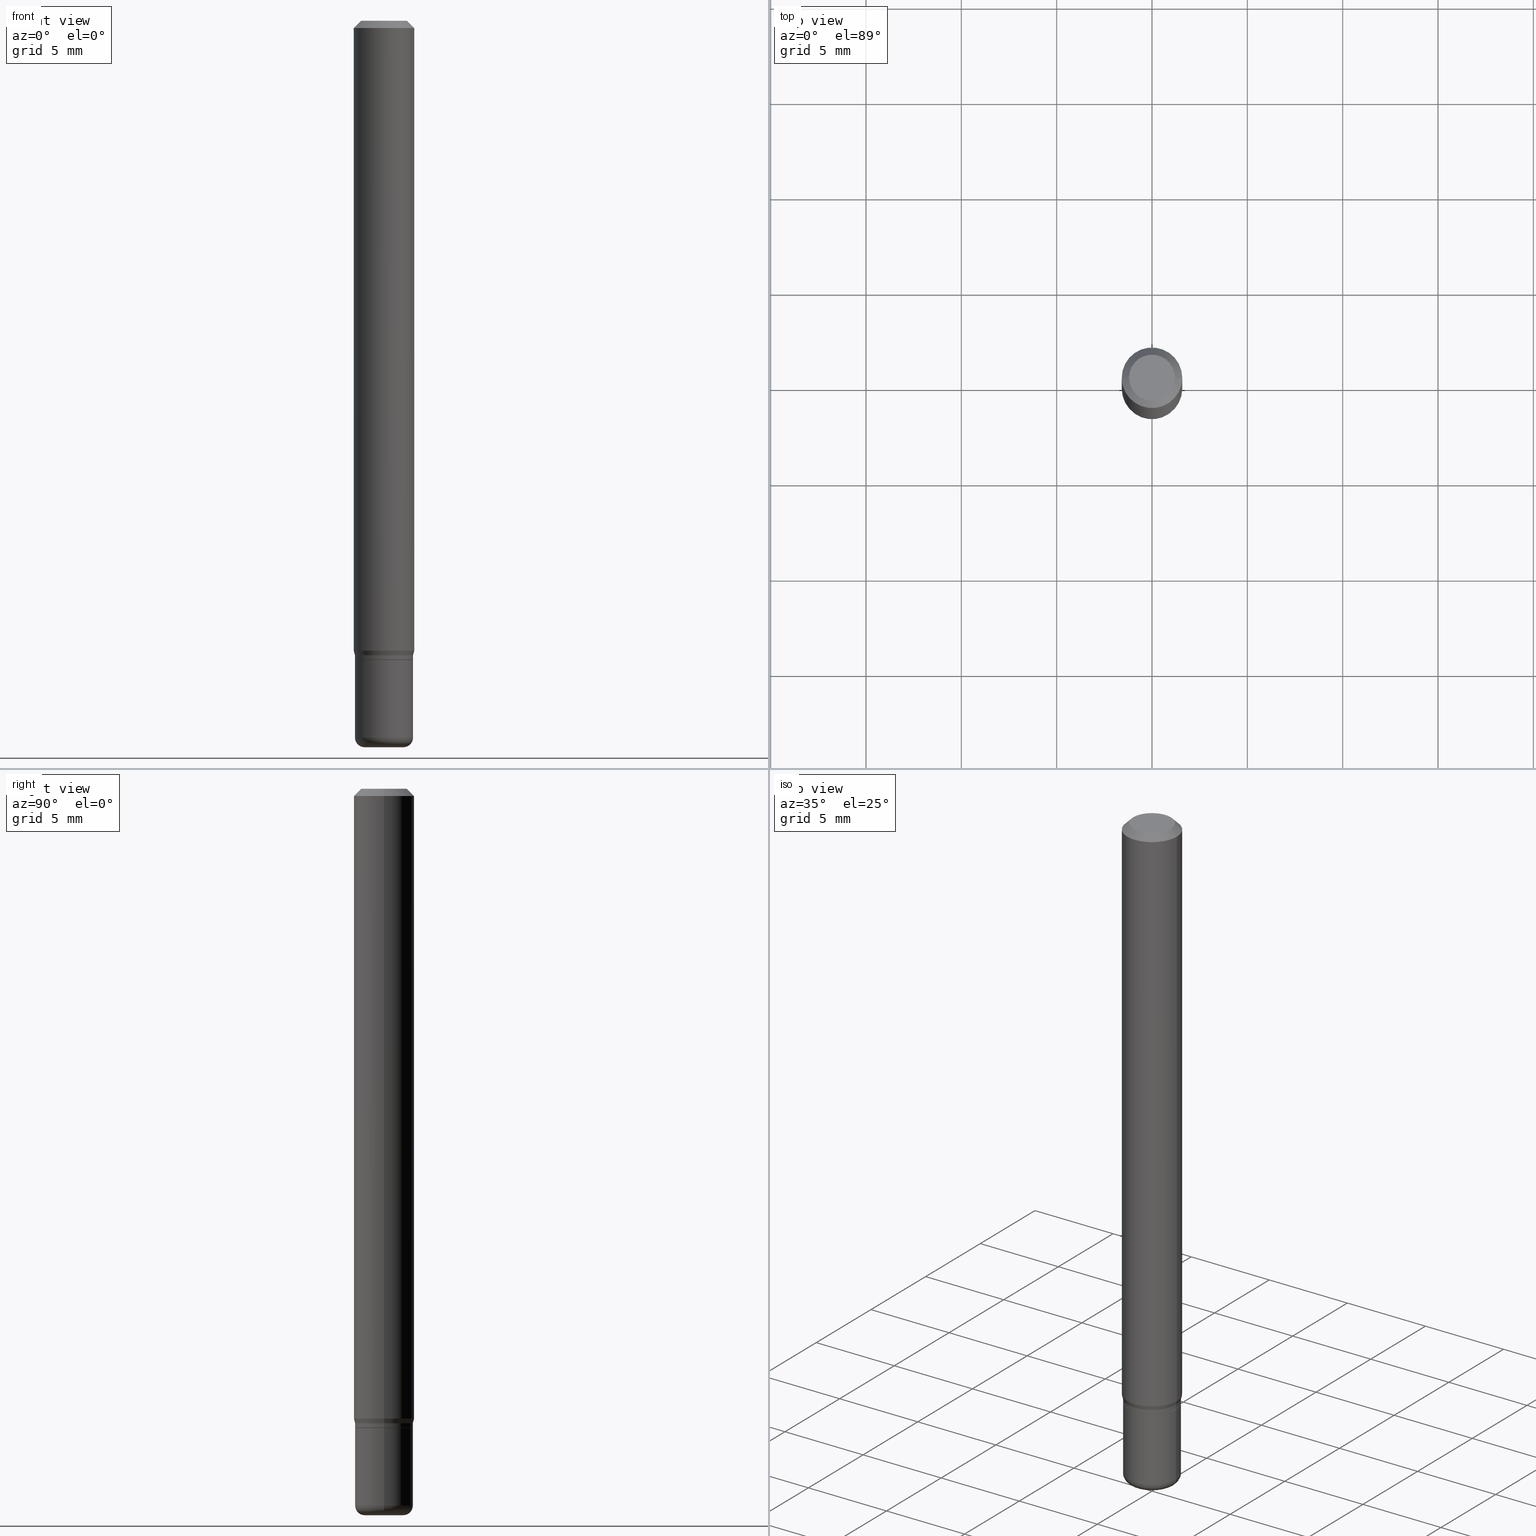
[diagram: canonical four-view strip — front | top / right | iso, engineering-drawing reading convention]
A machine part, canonical four-view strip (front | top / right | iso — engineering-drawing reading convention). The complete STEP part file that produces these views, byte-faithful:
ISO-10303-21;
HEADER;
FILE_DESCRIPTION (( 'STEP AP203' ),
    '1' );
FILE_NAME ('08778.STEP',
    '2024-02-29T21:01:12',
    ( '' ),
    ( '' ),
    'SwSTEP 2.0',
    'SolidWorks 2023',
    '' );
FILE_SCHEMA (( 'CONFIG_CONTROL_DESIGN' ));
ENDSEC;

DATA;
#1 = DIRECTION ( 'NONE',  ( -2.445468806185136597E-29, 3.491481338843145583E-15, 1.000000000000000000 ) ) ;
#2 = AXIS2_PLACEMENT_3D ( 'NONE', #90, #58, #375 ) ;
#3 = ORIENTED_EDGE ( 'NONE', *, *, #415, .T. ) ;
#4 = DIRECTION ( 'NONE',  ( 1.000000000000000000, -6.982962677686272233E-15, 0.000000000000000000 ) ) ;
#5 = EDGE_LOOP ( 'NONE', ( #332, #170, #44, #295 ) ) ;
#6 = DIRECTION ( 'NONE',  ( -2.445468806185136597E-29, 3.491481338843145583E-15, 1.000000000000000000 ) ) ;
#7 = EDGE_LOOP ( 'NONE', ( #418, #451, #160, #490 ) ) ;
#8 = CARTESIAN_POINT ( 'NONE',  ( 3.668203209277632395E-31, -5.237222008264614861E-17, -0.01499999999999970281 ) ) ;
#9 = EDGE_CURVE ( 'NONE', #404, #350, #108, .T. ) ;
#10 = SECURITY_CLASSIFICATION ( '', '', #434 ) ;
#11 = DIRECTION ( 'NONE',  ( -2.445468806185136877E-29, 3.491481338843145188E-15, 1.000000000000000000 ) ) ;
#12 = VERTEX_POINT ( 'NONE', #192 ) ;
#13 = FACE_OUTER_BOUND ( 'NONE', #336, .T. ) ;
#14 = DIRECTION ( 'NONE',  ( -2.445468806185136597E-29, 3.491481338843145583E-15, 1.000000000000000000 ) ) ;
#15 = CARTESIAN_POINT ( 'NONE',  ( 0.05999999999999999778, -5.027733127934128282E-15, -1.320000000000000062 ) ) ;
#16 = AXIS2_PLACEMENT_3D ( 'NONE', #212, #413, #206 ) ;
#17 = DIRECTION ( 'NONE',  ( 1.000000000000000000, 0.000000000000000000, 0.000000000000000000 ) ) ;
#18 = PERSON_AND_ORGANIZATION ( #139, #500 ) ;
#19 = CARTESIAN_POINT ( 'NONE',  ( 0.06250000000000000000, -4.364351673553916694E-16, 3.047610484872459871E-30 ) ) ;
#20 = EDGE_CURVE ( 'NONE', #412, #359, #214, .T. ) ;
#21 = CIRCLE ( 'NONE', #202, 0.05999999999999999778 ) ;
#22 = ORIENTED_EDGE ( 'NONE', *, *, #324, .T. ) ;
#23 = DIRECTION ( 'NONE',  ( 1.000000000000000000, -6.982962677686262766E-15, 0.000000000000000000 ) ) ;
#24 = CIRCLE ( 'NONE', #110, 0.02000000000000003511 ) ;
#25 = MANIFOLD_SOLID_BREP ( 'Body-Move/Copy2[1]', #91 ) ;
#26 = ORIENTED_EDGE ( 'NONE', *, *, #77, .F. ) ;
#27 = DATE_AND_TIME ( #385, #215 ) ;
#28 = CARTESIAN_POINT ( 'NONE',  ( 3.619293833154002365E-29, -5.167392381487854879E-15, -1.479999999999999982 ) ) ;
#29 = EDGE_CURVE ( 'NONE', #374, #172, #486, .T. ) ;
#30 = CARTESIAN_POINT ( 'NONE',  ( 0.000000000000000000, 0.000000000000000000, 0.000000000000000000 ) ) ;
#31 = VERTEX_POINT ( 'NONE', #229 ) ;
#32 = CARTESIAN_POINT ( 'NONE',  ( 0.04750000000000000749, -4.035134999187568762E-16, 2.731847993664288856E-16 ) ) ;
#33 = AXIS2_PLACEMENT_3D ( 'NONE', #417, #251, #131 ) ;
#34 = FACE_OUTER_BOUND ( 'NONE', #7, .T. ) ;
#35 = ORIENTED_EDGE ( 'NONE', *, *, #454, .F. ) ;
#36 = DIRECTION ( 'NONE',  ( -2.438088387897960049E-29, 3.491481338843145188E-15, 1.000000000000000000 ) ) ;
#37 = EDGE_CURVE ( 'NONE', #164, #404, #153, .T. ) ;
#38 = CARTESIAN_POINT ( 'NONE',  ( -0.06250000000000000000, 4.440892098500626162E-16, -3.074334431409316114E-30 ) ) ;
#39 = APPROVAL ( #183, 'UNSPECIFIED' ) ;
#40 = ORIENTED_EDGE ( 'NONE', *, *, #264, .F. ) ;
#41 = CIRCLE ( 'NONE', #335, 0.04000000000000000777 ) ;
#42 = DATE_AND_TIME ( #234, #51 ) ;
#43 = DIRECTION ( 'NONE',  ( -2.445468806185136877E-29, 3.491481338843145188E-15, 1.000000000000000000 ) ) ;
#44 = ORIENTED_EDGE ( 'NONE', *, *, #106, .T. ) ;
#45 = CARTESIAN_POINT ( 'NONE',  ( 0.000000000000000000, 0.000000000000000000, 0.000000000000000000 ) ) ;
#46 = EDGE_CURVE ( 'NONE', #31, #512, #390, .T. ) ;
#47 = ORIENTED_EDGE ( 'NONE', *, *, #358, .F. ) ;
#48 = LINE ( 'NONE', #369, #381 ) ;
#49 = ORIENTED_EDGE ( 'NONE', *, *, #135, .T. ) ;
#50 = AXIS2_PLACEMENT_3D ( 'NONE', #219, #396, #185 ) ;
#51 = LOCAL_TIME ( 16, 1, 12.00000000000000000, #181 ) ;
#52 = FACE_OUTER_BOUND ( 'NONE', #5, .T. ) ;
#53 = CARTESIAN_POINT ( 'NONE',  ( -0.04750000000000000749, 3.578768372314221353E-16, 2.731847993664239060E-16 ) ) ;
#54 = ORIENTED_EDGE ( 'NONE', *, *, #162, .T. ) ;
#55 = CARTESIAN_POINT ( 'NONE',  ( -0.05999999999999999778, -4.461748232924343562E-15, -1.320000000000000062 ) ) ;
#56 = ORIENTED_EDGE ( 'NONE', *, *, #253, .T. ) ;
#57 = AXIS2_PLACEMENT_3D ( 'NONE', #127, #437, #357 ) ;
#58 = DIRECTION ( 'NONE',  ( -2.445468806185136597E-29, 3.491481338843145583E-15, 1.000000000000000000 ) ) ;
#59 = CIRCLE ( 'NONE', #68, 0.06000000000000004635 ) ;
#60 = DIRECTION ( 'NONE',  ( 1.000000000000000000, -6.982962677686266711E-15, 4.852736867747365086E-29 ) ) ;
#61 = ADVANCED_FACE ( 'NONE', ( #510 ), #497, .T. ) ;
#62 = APPROVAL_ROLE ( '' ) ;
#63 = CARTESIAN_POINT ( 'NONE',  ( 0.05950000000000001815, -5.024241646595286064E-15, -1.320000000000000062 ) ) ;
#64 = ORIENTED_EDGE ( 'NONE', *, *, #180, .T. ) ;
#65 = COORDINATED_UNIVERSAL_TIME_OFFSET ( 5, 0, .BEHIND. ) ;
#66 = AXIS2_PLACEMENT_3D ( 'NONE', #28, #147, #318 ) ;
#67 = FACE_OUTER_BOUND ( 'NONE', #222, .T. ) ;
#68 = AXIS2_PLACEMENT_3D ( 'NONE', #140, #340, #379 ) ;
#69 = DATE_AND_TIME ( #71, #439 ) ;
#70 = DIRECTION ( 'NONE',  ( 1.000000000000000000, -6.982962677686264344E-15, 0.000000000000000000 ) ) ;
#71 = CALENDAR_DATE ( 2024, 29, 2 ) ;
#72 = DIRECTION ( 'NONE',  ( 1.000000000000000000, -6.982962677686266711E-15, 4.876176775795935793E-29 ) ) ;
#73 = CARTESIAN_POINT ( 'NONE',  ( 3.180747601520010727E-29, -4.541264589508919020E-15, -1.300669872981078168 ) ) ;
#74 = AXIS2_PLACEMENT_3D ( 'NONE', #288, #115, #448 ) ;
#75 = CIRCLE ( 'NONE', #372, 0.05999999999999999778 ) ;
#76 = CARTESIAN_POINT ( 'NONE',  ( 0.06000000000000001860, -4.189777606611761407E-16, 2.925706065477562457E-30 ) ) ;
#77 = EDGE_CURVE ( 'NONE', #371, #416, #21, .T. ) ;
#78 = PRODUCT ( '08778', '08778', '', ( #389 ) ) ;
#79 = ORIENTED_EDGE ( 'NONE', *, *, #443, .F. ) ;
#80 = DIRECTION ( 'NONE',  ( 1.000000000000000000, -6.982962677686262766E-15, 0.000000000000000000 ) ) ;
#81 = VERTEX_POINT ( 'NONE', #32 ) ;
#82 = LINE ( 'NONE', #38, #355 ) ;
#83 = AXIS2_PLACEMENT_3D ( 'NONE', #347, #513, #263 ) ;
#84 = VERTEX_POINT ( 'NONE', #225 ) ;
#85 = AXIS2_PLACEMENT_3D ( 'NONE', #155, #286, #328 ) ;
#86 = EDGE_CURVE ( 'NONE', #126, #350, #143, .T. ) ;
#87 = FACE_OUTER_BOUND ( 'NONE', #450, .T. ) ;
#88 = DIRECTION ( 'NONE',  ( 1.000000000000000000, -6.982962677686266711E-15, 4.876176775795935793E-29 ) ) ;
#89 = ORIENTED_EDGE ( 'NONE', *, *, #345, .T. ) ;
#90 = CARTESIAN_POINT ( 'NONE',  ( 3.226796089761288762E-29, -4.607009626603530934E-15, -1.319500000000000117 ) ) ;
#91 = CLOSED_SHELL ( 'NONE', ( #171, #506, #125, #271, #383, #306 ) ) ;
#92 = CONICAL_SURFACE ( 'NONE', #16, 0.06250000000000000000, 0.7853981633974488341 ) ;
#93 = ORIENTED_EDGE ( 'NONE', *, *, #264, .T. ) ;
#94 = DIRECTION ( 'NONE',  ( -2.445468806185136597E-29, 3.491481338843145583E-15, 1.000000000000000000 ) ) ;
#95 = FACE_OUTER_BOUND ( 'NONE', #300, .T. ) ;
#96 = CARTESIAN_POINT ( 'NONE',  ( 0.06000000000000004635, -4.992818314545698211E-15, -1.310000000000000275 ) ) ;
#97 = AXIS2_PLACEMENT_3D ( 'NONE', #474, #433, #70 ) ;
#98 = EDGE_CURVE ( 'NONE', #512, #467, #349, .T. ) ;
#99 = DATE_AND_TIME ( #305, #465 ) ;
#100 = AXIS2_PLACEMENT_3D ( 'NONE', #297, #457, #166 ) ;
#101 = LINE ( 'NONE', #19, #370 ) ;
#102 = PERSON_AND_ORGANIZATION_ROLE ( 'design_owner' ) ;
#103 = DIRECTION ( 'NONE',  ( -1.000000000000000000, 6.982962677686265922E-15, -4.876176775795935793E-29 ) ) ;
#104 = ORIENTED_EDGE ( 'NONE', *, *, #283, .T. ) ;
#105 = DIRECTION ( 'NONE',  ( 0.7071067811866199593, -2.468850131083015945E-15, 0.7071067811864750752 ) ) ;
#106 = EDGE_CURVE ( 'NONE', #373, #412, #148, .T. ) ;
#107 = APPROVAL_STATUS ( 'not_yet_approved' ) ;
#108 = LINE ( 'NONE', #112, #397 ) ;
#109 = CARTESIAN_POINT ( 'NONE',  ( -6.680649051745406845E-45, 9.538196290434862081E-31, 2.731847993664263218E-16 ) ) ;
#110 = AXIS2_PLACEMENT_3D ( 'NONE', #239, #117, #479 ) ;
#111 = PERSON_AND_ORGANIZATION ( #139, #500 ) ;
#112 = CARTESIAN_POINT ( 'NONE',  ( -0.06000000000000004635, -4.147514912428461087E-15, -1.310000000000000275 ) ) ;
#113 = CARTESIAN_POINT ( 'NONE',  ( -0.05950000000000001815, -4.185982439495692846E-15, -1.320000000000000062 ) ) ;
#114 = ORIENTED_EDGE ( 'NONE', *, *, #86, .F. ) ;
#115 = DIRECTION ( 'NONE',  ( -2.445468806185136597E-29, 3.491481338843145583E-15, 1.000000000000000000 ) ) ;
#116 = ORIENTED_EDGE ( 'NONE', *, *, #358, .T. ) ;
#117 = DIRECTION ( 'NONE',  ( 7.105427357601001859E-15, 1.000000000000000000, -3.491481338843145583E-15 ) ) ;
#118 = ORIENTED_EDGE ( 'NONE', *, *, #98, .F. ) ;
#119 = AXIS2_PLACEMENT_3D ( 'NONE', #277, #399, #235 ) ;
#120 = AXIS2_PLACEMENT_3D ( 'NONE', #301, #460, #88 ) ;
#121 = ORIENTED_EDGE ( 'NONE', *, *, #180, .F. ) ;
#122 = APPROVAL ( #107, 'UNSPECIFIED' ) ;
#123 = CARTESIAN_POINT ( 'NONE',  ( 3.582686580359766038E-29, -5.359686688179453325E-15, -1.500000000000000222 ) ) ;
#124 = DIRECTION ( 'NONE',  ( -2.445468806185136597E-29, 3.491481338843145583E-15, 1.000000000000000000 ) ) ;
#125 = ADVANCED_FACE ( 'NONE', ( #67 ), #468, .F. ) ;
#126 = VERTEX_POINT ( 'NONE', #311 ) ;
#127 = CARTESIAN_POINT ( 'NONE',  ( 3.668203209277632395E-31, -5.237222008264614861E-17, -0.01499999999999970281 ) ) ;
#128 = PRODUCT_RELATED_PRODUCT_CATEGORY ( 'detail', '', ( #78 ) ) ;
#129 = CIRCLE ( 'NONE', #2, 0.06000000000000001860 ) ;
#130 = EDGE_LOOP ( 'NONE', ( #3, #93, #121, #157 ) ) ;
#131 = DIRECTION ( 'NONE',  ( 1.000000000000000000, -6.982962677686273810E-15, 0.000000000000000000 ) ) ;
#132 = EDGE_LOOP ( 'NONE', ( #459, #47 ) ) ;
#133 = PLANE ( 'NONE',  #458 ) ;
#134 = FACE_OUTER_BOUND ( 'NONE', #132, .T. ) ;
#135 = EDGE_CURVE ( 'NONE', #81, #373, #391, .T. ) ;
#136 = CLOSED_SHELL ( 'NONE', ( #247, #61, #220, #436, #228, #244, #187, #365, #401, #477, #407, #230 ) ) ;
#137 =( GEOMETRIC_REPRESENTATION_CONTEXT ( 3 ) GLOBAL_UNCERTAINTY_ASSIGNED_CONTEXT ( ( #376 ) ) GLOBAL_UNIT_ASSIGNED_CONTEXT ( ( #466, #224, #188 ) ) REPRESENTATION_CONTEXT ( 'NONE', 'WORKASPACE' ) );
#138 = CYLINDRICAL_SURFACE ( 'NONE', #120, 0.06000000000000001860 ) ;
#139 = PERSON ( 'UNSPECIFIED', 'UNSPECIFIED', 'UNSPECIFIED', ('UNSPECIFIED'), ('UNSPECIFIED'), ('UNSPECIFIED') ) ;
#140 = CARTESIAN_POINT ( 'NONE',  ( 3.203564136102529457E-29, -4.573840553884521577E-15, -1.310000000000000275 ) ) ;
#141 = EDGE_CURVE ( 'NONE', #373, #81, #422, .T. ) ;
#142 = CC_DESIGN_DATE_AND_TIME_ASSIGNMENT ( #316, #463, ( #367 ) ) ;
#143 = CIRCLE ( 'NONE', #257, 0.06250000000000000000 ) ;
#144 = PERSON_AND_ORGANIZATION ( #139, #500 ) ;
#145 = CC_DESIGN_APPROVAL ( #39, ( #233 ) ) ;
#146 = ORIENTED_EDGE ( 'NONE', *, *, #29, .F. ) ;
#147 = DIRECTION ( 'NONE',  ( -2.445468806185136597E-29, 3.491481338843145583E-15, 1.000000000000000000 ) ) ;
#148 = LINE ( 'NONE', #308, #314 ) ;
#149 = APPROVAL_DATE_TIME ( #99, #39 ) ;
#150 = DIRECTION ( 'NONE',  ( -2.445468806185136597E-29, 3.491481338843145583E-15, 1.000000000000000000 ) ) ;
#151 = CONICAL_SURFACE ( 'NONE', #354, 0.06250000000000000000, 0.7853981633974488341 ) ;
#152 = DIRECTION ( 'NONE',  ( -2.445468806185136597E-29, 3.491481338843145583E-15, 1.000000000000000000 ) ) ;
#153 = LINE ( 'NONE', #435, #430 ) ;
#154 = EDGE_CURVE ( 'NONE', #285, #164, #470, .T. ) ;
#155 = CARTESIAN_POINT ( 'NONE',  ( 3.228018824164380442E-29, -4.608755367272952437E-15, -1.320000000000000062 ) ) ;
#156 = ORIENTED_EDGE ( 'NONE', *, *, #20, .F. ) ;
#157 = ORIENTED_EDGE ( 'NONE', *, *, #283, .F. ) ;
#158 = CARTESIAN_POINT ( 'NONE',  ( 3.228018824164380442E-29, -4.608755367272952437E-15, -1.320000000000000062 ) ) ;
#159 = AXIS2_PLACEMENT_3D ( 'NONE', #329, #1, #362 ) ;
#160 = ORIENTED_EDGE ( 'NONE', *, *, #471, .T. ) ;
#161 = DIRECTION ( 'NONE',  ( -2.445468806185136597E-29, 3.491481338843145583E-15, 1.000000000000000000 ) ) ;
#162 = EDGE_CURVE ( 'NONE', #164, #512, #406, .T. ) ;
#163 = EDGE_LOOP ( 'NONE', ( #236, #211, #35, #118 ) ) ;
#164 = VERTEX_POINT ( 'NONE', #393 ) ;
#165 = DIRECTION ( 'NONE',  ( 1.000000000000000000, -6.982962677686262766E-15, 0.000000000000000000 ) ) ;
#166 = DIRECTION ( 'NONE',  ( 1.000000000000000000, -6.982962677686265922E-15, 4.876176775795935793E-29 ) ) ;
#167 = APPROVAL_PERSON_ORGANIZATION ( #18, #39, #218 ) ;
#168 = ORIENTED_EDGE ( 'NONE', *, *, #86, .T. ) ;
#169 = ORIENTED_EDGE ( 'NONE', *, *, #141, .T. ) ;
#170 = ORIENTED_EDGE ( 'NONE', *, *, #141, .F. ) ;
#171 = ADVANCED_FACE ( 'NONE', ( #189 ), #475, .T. ) ;
#172 = VERTEX_POINT ( 'NONE', #313 ) ;
#173 = CYLINDRICAL_SURFACE ( 'NONE', #299, 0.06250000000000000000 ) ;
#174 = ORIENTED_EDGE ( 'NONE', *, *, #106, .F. ) ;
#175 = FACE_OUTER_BOUND ( 'NONE', #452, .T. ) ;
#176 = DIRECTION ( 'NONE',  ( -2.445468806185136597E-29, 3.491481338843145583E-15, 1.000000000000000000 ) ) ;
#177 = VECTOR ( 'NONE', #266, 39.37007874015748143 ) ;
#178 = AXIS2_PLACEMENT_3D ( 'NONE', #344, #461, #421 ) ;
#179 = DIRECTION ( 'NONE',  ( -1.000000000000000000, 6.982962677686265922E-15, -4.876176775795935793E-29 ) ) ;
#180 = EDGE_CURVE ( 'NONE', #172, #374, #323, .T. ) ;
#181 = COORDINATED_UNIVERSAL_TIME_OFFSET ( 5, 0, .BEHIND. ) ;
#182 = CARTESIAN_POINT ( 'NONE',  ( 4.189777606612082375E-16, 0.05999999999999539035, -1.320000000000000506 ) ) ;
#183 = APPROVAL_STATUS ( 'not_yet_approved' ) ;
#184 = AXIS2_PLACEMENT_3D ( 'NONE', #210, #337, #493 ) ;
#185 = DIRECTION ( 'NONE',  ( 1.000000000000000000, -6.982962677686273810E-15, 0.000000000000000000 ) ) ;
#186 = EDGE_LOOP ( 'NONE', ( #56, #319, #366, #238 ) ) ;
#187 = ADVANCED_FACE ( 'NONE', ( #226 ), #395, .T. ) ;
#188 =( NAMED_UNIT ( * ) SI_UNIT ( $, .STERADIAN. ) SOLID_ANGLE_UNIT ( ) );
#189 = FACE_OUTER_BOUND ( 'NONE', #130, .T. ) ;
#190 = APPLICATION_PROTOCOL_DEFINITION ( 'international standard', 'config_control_design', 1994, #455 ) ;
#191 = DIRECTION ( 'NONE',  ( 2.438088387897960049E-29, -3.491481338843145188E-15, -1.000000000000000000 ) ) ;
#192 = CARTESIAN_POINT ( 'NONE',  ( -0.04000000000000000777, -4.847035826996236908E-15, -1.500000000000000222 ) ) ;
#193 = CARTESIAN_POINT ( 'NONE',  ( 3.228018824164380442E-29, -4.608755367272952437E-15, -1.320000000000000062 ) ) ;
#194 = LOCAL_TIME ( 16, 1, 12.00000000000000000, #509 ) ;
#195 = CC_DESIGN_SECURITY_CLASSIFICATION ( #10, ( #233 ) ) ;
#196 = EDGE_CURVE ( 'NONE', #126, #359, #101, .T. ) ;
#197 = CARTESIAN_POINT ( 'NONE',  ( -0.05950000000000001815, -4.183333212321581645E-15, -1.320000000000000062 ) ) ;
#198 = ORIENTED_EDGE ( 'NONE', *, *, #377, .T. ) ;
#199 = FACE_OUTER_BOUND ( 'NONE', #498, .T. ) ;
#200 = EDGE_CURVE ( 'NONE', #359, #412, #248, .T. ) ;
#201 = FACE_OUTER_BOUND ( 'NONE', #163, .T. ) ;
#202 = AXIS2_PLACEMENT_3D ( 'NONE', #193, #150, #260 ) ;
#203 = APPROVAL_PERSON_ORGANIZATION ( #111, #293, #62 ) ;
#204 = CARTESIAN_POINT ( 'NONE',  ( -0.06250000000000000000, -4.097175379658856404E-15, -1.300669872981078168 ) ) ;
#205 = DIRECTION ( 'NONE',  ( -2.445468806185136597E-29, 3.491481338843145583E-15, 1.000000000000000000 ) ) ;
#206 = DIRECTION ( 'NONE',  ( -1.000000000000000000, 6.982962677686266711E-15, 0.000000000000000000 ) ) ;
#207 = EDGE_CURVE ( 'NONE', #350, #126, #380, .T. ) ;
#208 = ORIENTED_EDGE ( 'NONE', *, *, #135, .F. ) ;
#209 = APPROVAL_PERSON_ORGANIZATION ( #472, #122, #432 ) ;
#210 = CARTESIAN_POINT ( 'NONE',  ( 3.619293833154002365E-29, -5.167392381487854879E-15, -1.479999999999999982 ) ) ;
#211 = ORIENTED_EDGE ( 'NONE', *, *, #37, .T. ) ;
#212 = CARTESIAN_POINT ( 'NONE',  ( 3.668203209277632395E-31, -5.237222008264614861E-17, -0.01499999999999970281 ) ) ;
#213 = CARTESIAN_POINT ( 'NONE',  ( -0.06250000000000000000, -1.852729194945719842E-15, -0.01499999999999970281 ) ) ;
#214 = CIRCLE ( 'NONE', #334, 0.06250000000000000000 ) ;
#215 = LOCAL_TIME ( 16, 1, 12.00000000000000000, #269 ) ;
#216 = CARTESIAN_POINT ( 'NONE',  ( 0.06000000000000004635, -4.992818314545698211E-15, -1.310000000000000275 ) ) ;
#217 = DIRECTION ( 'NONE',  ( -2.445468806185136877E-29, 3.491481338843145188E-15, 1.000000000000000000 ) ) ;
#218 = APPROVAL_ROLE ( '' ) ;
#219 = CARTESIAN_POINT ( 'NONE',  ( 3.228018824164380442E-29, -4.608755367272952437E-15, -1.320000000000000062 ) ) ;
#220 = ADVANCED_FACE ( 'NONE', ( #321 ), #151, .T. ) ;
#221 = AXIS2_PLACEMENT_3D ( 'NONE', #182, #191, #103 ) ;
#222 = EDGE_LOOP ( 'NONE', ( #392, #22 ) ) ;
#223 = VECTOR ( 'NONE', #403, 39.37007874015748143 ) ;
#224 =( NAMED_UNIT ( * ) PLANE_ANGLE_UNIT ( ) SI_UNIT ( $, .RADIAN. ) );
#225 = CARTESIAN_POINT ( 'NONE',  ( 0.04000000000000000777, -5.516540515372169003E-15, -1.500000000000000222 ) ) ;
#226 = FACE_OUTER_BOUND ( 'NONE', #262, .T. ) ;
#227 = CALENDAR_DATE ( 2024, 29, 2 ) ;
#228 = ADVANCED_FACE ( 'NONE', ( #484 ), #231, .T. ) ;
#229 = CARTESIAN_POINT ( 'NONE',  ( 0.05950000000000001815, -5.024241646595286064E-15, -1.320000000000000062 ) ) ;
#230 = ADVANCED_FACE ( 'NONE', ( #242 ), #320, .T. ) ;
#231 = CONICAL_SURFACE ( 'NONE', #74, 0.06000000000000004635, 0.2617993877991475760 ) ;
#232 = DIRECTION ( 'NONE',  ( -1.000000000000000000, 6.982962677686266711E-15, 0.000000000000000000 ) ) ;
#233 = PRODUCT_DEFINITION_FORMATION_WITH_SPECIFIED_SOURCE ( 'ANY', '', #78, .NOT_KNOWN. ) ;
#234 = CALENDAR_DATE ( 2024, 29, 2 ) ;
#235 = DIRECTION ( 'NONE',  ( 1.000000000000000000, -6.982962677686266711E-15, 4.876176775795935793E-29 ) ) ;
#236 = ORIENTED_EDGE ( 'NONE', *, *, #420, .T. ) ;
#237 = LINE ( 'NONE', #405, #515 ) ;
#238 = ORIENTED_EDGE ( 'NONE', *, *, #46, .F. ) ;
#239 = CARTESIAN_POINT ( 'NONE',  ( -0.04000000000000000083, -4.883175287183815341E-15, -1.479999999999999982 ) ) ;
#240 = AXIS2_PLACEMENT_3D ( 'NONE', #364, #6, #485 ) ;
#241 = ORIENTED_EDGE ( 'NONE', *, *, #345, .F. ) ;
#242 = FACE_OUTER_BOUND ( 'NONE', #250, .T. ) ;
#243 = CARTESIAN_POINT ( 'NONE',  ( 0.06000000000000001860, -5.025987387264708356E-15, -1.319500000000000117 ) ) ;
#244 = ADVANCED_FACE ( 'NONE', ( #34 ), #456, .T. ) ;
#245 = ORIENTED_EDGE ( 'NONE', *, *, #443, .T. ) ;
#246 = CARTESIAN_POINT ( 'NONE',  ( -0.06000000000000003247, -4.461748232924343562E-15, -1.479999999999999982 ) ) ;
#247 = ADVANCED_FACE ( 'NONE', ( #201 ), #517, .T. ) ;
#248 = CIRCLE ( 'NONE', #57, 0.06250000000000000000 ) ;
#249 = CIRCLE ( 'NONE', #85, 0.05950000000000001815 ) ;
#250 = EDGE_LOOP ( 'NONE', ( #488, #54, #462, #480 ) ) ;
#251 = DIRECTION ( 'NONE',  ( -2.445468806185136597E-29, 3.491481338843145583E-15, 1.000000000000000000 ) ) ;
#252 = CARTESIAN_POINT ( 'NONE',  ( 3.668203209277632395E-31, -5.237222008264614861E-17, -0.01499999999999970281 ) ) ;
#253 = EDGE_CURVE ( 'NONE', #31, #285, #249, .T. ) ;
#254 = CARTESIAN_POINT ( 'NONE',  ( 0.000000000000000000, 0.000000000000000000, 0.000000000000000000 ) ) ;
#255 = ORIENTED_EDGE ( 'NONE', *, *, #162, .F. ) ;
#256 = LINE ( 'NONE', #216, #315 ) ;
#257 = AXIS2_PLACEMENT_3D ( 'NONE', #356, #425, #23 ) ;
#258 = TOROIDAL_SURFACE ( 'NONE', #184, 0.04000000000000000083, 0.02000000000000003511 ) ;
#259 = DIRECTION ( 'NONE',  ( 0.000000000000000000, 0.000000000000000000, 1.000000000000000000 ) ) ;
#260 = DIRECTION ( 'NONE',  ( 1.000000000000000000, -6.982962677686268288E-15, 0.000000000000000000 ) ) ;
#261 =( LENGTH_UNIT ( ) NAMED_UNIT ( * ) SI_UNIT ( $, .METRE. ) );
#262 = EDGE_LOOP ( 'NONE', ( #241, #303, #518, #156 ) ) ;
#263 = DIRECTION ( 'NONE',  ( 1.000000000000000000, -6.982962677686264344E-15, 4.883557194083111780E-29 ) ) ;
#264 = EDGE_CURVE ( 'NONE', #12, #374, #24, .T. ) ;
#265 = PERSON_AND_ORGANIZATION_ROLE ( 'creator' ) ;
#266 = DIRECTION ( 'NONE',  ( -0.7071067811866199593, 7.493145998870616062E-15, 0.7071067811864750752 ) ) ;
#267 = AXIS2_PLACEMENT_3D ( 'NONE', #353, #427, #60 ) ;
#268 = CC_DESIGN_APPROVAL ( #293, ( #367 ) ) ;
#269 = COORDINATED_UNIVERSAL_TIME_OFFSET ( 5, 0, .BEHIND. ) ;
#270 = DIRECTION ( 'NONE',  ( -2.445468806185136877E-29, 3.491481338843145188E-15, 1.000000000000000000 ) ) ;
#271 = ADVANCED_FACE ( 'NONE', ( #199 ), #368, .T. ) ;
#272 = ORIENTED_EDGE ( 'NONE', *, *, #415, .F. ) ;
#273 = PERSON_AND_ORGANIZATION ( #139, #500 ) ;
#274 = DIRECTION ( 'NONE',  ( -0.2588190451025189631, 5.211531920934535265E-15, 0.9659258262890687563 ) ) ;
#275 = CARTESIAN_POINT ( 'NONE',  ( 3.226796089761288762E-29, -4.607009626603530934E-15, -1.319500000000000117 ) ) ;
#276 = APPROVAL_DATE_TIME ( #42, #122 ) ;
#277 = CARTESIAN_POINT ( 'NONE',  ( 0.000000000000000000, 0.000000000000000000, 0.000000000000000000 ) ) ;
#278 = VECTOR ( 'NONE', #270, 39.37007874015748143 ) ;
#279 = DIRECTION ( 'NONE',  ( 1.000000000000000000, -6.982962677686266711E-15, 4.876176775795935793E-29 ) ) ;
#280 = CONICAL_SURFACE ( 'NONE', #33, 0.05950000000000001815, 0.7853981633975507526 ) ;
#281 = ORIENTED_EDGE ( 'NONE', *, *, #454, .T. ) ;
#282 = DIRECTION ( 'NONE',  ( -2.445468806185136597E-29, 3.491481338843145583E-15, 1.000000000000000000 ) ) ;
#283 = EDGE_CURVE ( 'NONE', #84, #172, #409, .T. ) ;
#284 = ORIENTED_EDGE ( 'NONE', *, *, #196, .F. ) ;
#285 = VERTEX_POINT ( 'NONE', #197 ) ;
#286 = DIRECTION ( 'NONE',  ( -2.445468806185136597E-29, 3.491481338843145583E-15, 1.000000000000000000 ) ) ;
#287 = SHAPE_DEFINITION_REPRESENTATION ( #402, #338 ) ;
#288 = CARTESIAN_POINT ( 'NONE',  ( 3.203564136102529457E-29, -4.573840553884521577E-15, -1.310000000000000275 ) ) ;
#289 = AXIS2_PLACEMENT_3D ( 'NONE', #30, #516, #72 ) ;
#290 = EDGE_CURVE ( 'NONE', #172, #371, #440, .T. ) ;
#291 = ORIENTED_EDGE ( 'NONE', *, *, #377, .F. ) ;
#292 = DIRECTION ( 'NONE',  ( 1.000000000000000000, -6.982962677686258033E-15, 0.000000000000000000 ) ) ;
#293 = APPROVAL ( #426, 'UNSPECIFIED' ) ;
#294 = DIRECTION ( 'NONE',  ( 2.438088387897960049E-29, -3.491481338843145188E-15, -1.000000000000000000 ) ) ;
#295 = ORIENTED_EDGE ( 'NONE', *, *, #20, .T. ) ;
#296 = EDGE_LOOP ( 'NONE', ( #281, #307, #114, #363 ) ) ;
#297 = CARTESIAN_POINT ( 'NONE',  ( 3.228018824164380442E-29, -4.608755367272952437E-15, -1.320000000000000062 ) ) ;
#298 = EDGE_LOOP ( 'NONE', ( #208, #441, #400, #174 ) ) ;
#299 = AXIS2_PLACEMENT_3D ( 'NONE', #254, #14, #341 ) ;
#300 = EDGE_LOOP ( 'NONE', ( #445, #116, #502, #255 ) ) ;
#301 = CARTESIAN_POINT ( 'NONE',  ( 0.000000000000000000, 0.000000000000000000, 0.000000000000000000 ) ) ;
#302 = CARTESIAN_POINT ( 'NONE',  ( 0.06250000000000000000, -4.888073874380378612E-16, -0.01499999999999970281 ) ) ;
#303 = ORIENTED_EDGE ( 'NONE', *, *, #207, .T. ) ;
#304 = DIMENSIONAL_EXPONENTS ( 1.000000000000000000, 0.000000000000000000, 0.000000000000000000, 0.000000000000000000, 0.000000000000000000, 0.000000000000000000, 0.000000000000000000 ) ;
#305 = CALENDAR_DATE ( 2024, 29, 2 ) ;
#306 = ADVANCED_FACE ( 'NONE', ( #87 ), #325, .F. ) ;
#307 = ORIENTED_EDGE ( 'NONE', *, *, #9, .T. ) ;
#308 = CARTESIAN_POINT ( 'NONE',  ( -0.06250000000000000000, 3.840629472727455270E-16, -0.01499999999999970281 ) ) ;
#309 = CC_DESIGN_DATE_AND_TIME_ASSIGNMENT ( #69, #312, ( #10 ) ) ;
#310 = PERSON_AND_ORGANIZATION ( #139, #500 ) ;
#311 = CARTESIAN_POINT ( 'NONE',  ( 0.06250000000000000000, -4.977699756864310689E-15, -1.300669872981078168 ) ) ;
#312 = DATE_TIME_ROLE ( 'classification_date' ) ;
#313 = CARTESIAN_POINT ( 'NONE',  ( 0.06000000000000003247, -5.586370142149031512E-15, -1.479999999999999982 ) ) ;
#314 = VECTOR ( 'NONE', #508, 39.37007874015748143 ) ;
#315 = VECTOR ( 'NONE', #495, 39.37007874015748854 ) ;
#316 = DATE_AND_TIME ( #227, #194 ) ;
#317 = CC_DESIGN_APPROVAL ( #122, ( #10 ) ) ;
#318 = DIRECTION ( 'NONE',  ( 1.000000000000000000, -6.982962677686264344E-15, 0.000000000000000000 ) ) ;
#319 = ORIENTED_EDGE ( 'NONE', *, *, #154, .T. ) ;
#320 = CYLINDRICAL_SURFACE ( 'NONE', #119, 0.06000000000000002554 ) ;
#321 = FACE_OUTER_BOUND ( 'NONE', #298, .T. ) ;
#322 = ORIENTED_EDGE ( 'NONE', *, *, #290, .F. ) ;
#323 = CIRCLE ( 'NONE', #97, 0.06000000000000003247 ) ;
#324 = EDGE_CURVE ( 'NONE', #416, #371, #75, .T. ) ;
#325 = PLANE ( 'NONE',  #487 ) ;
#326 = CIRCLE ( 'NONE', #240, 0.05950000000000001815 ) ;
#327 = CC_DESIGN_PERSON_AND_ORGANIZATION_ASSIGNMENT ( #273, #348, ( #233 ) ) ;
#328 = DIRECTION ( 'NONE',  ( 1.000000000000000000, -6.982962677686273810E-15, 0.000000000000000000 ) ) ;
#329 = CARTESIAN_POINT ( 'NONE',  ( 0.000000000000000000, 0.000000000000000000, 0.000000000000000000 ) ) ;
#330 = EDGE_CURVE ( 'NONE', #81, #359, #237, .T. ) ;
#331 = ORIENTED_EDGE ( 'NONE', *, *, #200, .F. ) ;
#332 = ORIENTED_EDGE ( 'NONE', *, *, #330, .F. ) ;
#333 = DIRECTION ( 'NONE',  ( 1.000000000000000000, -6.982962677686262766E-15, 0.000000000000000000 ) ) ;
#334 = AXIS2_PLACEMENT_3D ( 'NONE', #252, #176, #342 ) ;
#335 = AXIS2_PLACEMENT_3D ( 'NONE', #382, #501, #292 ) ;
#336 = EDGE_LOOP ( 'NONE', ( #168, #89, #331, #284 ) ) ;
#337 = DIRECTION ( 'NONE',  ( -2.445468806185136597E-29, 3.491481338843145583E-15, 1.000000000000000000 ) ) ;
#338 = ADVANCED_BREP_SHAPE_REPRESENTATION ( '08778', ( #25, #384, #431 ), #137 ) ;
#339 = ORIENTED_EDGE ( 'NONE', *, *, #290, .T. ) ;
#340 = DIRECTION ( 'NONE',  ( -2.445468806185136597E-29, 3.491481338843145583E-15, 1.000000000000000000 ) ) ;
#341 = DIRECTION ( 'NONE',  ( 1.000000000000000000, -6.982962677686266711E-15, 4.876176775795935793E-29 ) ) ;
#342 = DIRECTION ( 'NONE',  ( 1.000000000000000000, -6.982962677686266711E-15, 0.000000000000000000 ) ) ;
#343 = AXIS2_PLACEMENT_3D ( 'NONE', #410, #360, #4 ) ;
#344 = CARTESIAN_POINT ( 'NONE',  ( 3.668203209277704895E-29, -5.237222008264718177E-15, -1.500000000000000222 ) ) ;
#345 = EDGE_CURVE ( 'NONE', #350, #412, #82, .T. ) ;
#346 = LENGTH_MEASURE_WITH_UNIT ( LENGTH_MEASURE( 0.02539999999999999897 ), #261 );
#347 = CARTESIAN_POINT ( 'NONE',  ( 3.619293833154002365E-29, -5.167392381487854879E-15, -1.479999999999999982 ) ) ;
#348 = PERSON_AND_ORGANIZATION_ROLE ( 'creator' ) ;
#349 = LINE ( 'NONE', #476, #278 ) ;
#350 = VERTEX_POINT ( 'NONE', #204 ) ;
#351 = PERSON_AND_ORGANIZATION ( #139, #500 ) ;
#352 = APPROVAL_DATE_TIME ( #27, #293 ) ;
#353 = CARTESIAN_POINT ( 'NONE',  ( -6.680649051745406845E-45, 9.538196290434862081E-31, 2.731847993664263218E-16 ) ) ;
#354 = AXIS2_PLACEMENT_3D ( 'NONE', #8, #478, #232 ) ;
#355 = VECTOR ( 'NONE', #43, 39.37007874015748143 ) ;
#356 = CARTESIAN_POINT ( 'NONE',  ( 3.180747601520010727E-29, -4.541264589508919020E-15, -1.300669872981078168 ) ) ;
#357 = DIRECTION ( 'NONE',  ( 1.000000000000000000, -6.982962677686266711E-15, 0.000000000000000000 ) ) ;
#358 = EDGE_CURVE ( 'NONE', #285, #31, #326, .T. ) ;
#359 = VERTEX_POINT ( 'NONE', #302 ) ;
#360 = DIRECTION ( 'NONE',  ( -6.982962677686266711E-15, -1.000000000000000000, 3.491481338843145583E-15 ) ) ;
#361 = CC_DESIGN_PERSON_AND_ORGANIZATION_ASSIGNMENT ( #144, #102, ( #78 ) ) ;
#362 = DIRECTION ( 'NONE',  ( 1.000000000000000000, -6.982962677686266711E-15, 4.876176775795935793E-29 ) ) ;
#363 = ORIENTED_EDGE ( 'NONE', *, *, #471, .F. ) ;
#364 = CARTESIAN_POINT ( 'NONE',  ( 3.228018824164380442E-29, -4.608755367272952437E-15, -1.320000000000000062 ) ) ;
#365 = ADVANCED_FACE ( 'NONE', ( #52 ), #92, .T. ) ;
#366 = ORIENTED_EDGE ( 'NONE', *, *, #420, .F. ) ;
#367 = PRODUCT_DEFINITION ( 'UNKNOWN', '', #233, #496 ) ;
#368 = CYLINDRICAL_SURFACE ( 'NONE', #505, 0.06000000000000001860 ) ;
#369 = CARTESIAN_POINT ( 'NONE',  ( -0.06000000000000001860, 4.263256414560602437E-16, -2.951361054152944114E-30 ) ) ;
#370 = VECTOR ( 'NONE', #503, 39.37007874015748143 ) ;
#371 = VERTEX_POINT ( 'NONE', #15 ) ;
#372 = AXIS2_PLACEMENT_3D ( 'NONE', #158, #282, #442 ) ;
#373 = VERTEX_POINT ( 'NONE', #53 ) ;
#374 = VERTEX_POINT ( 'NONE', #246 ) ;
#375 = DIRECTION ( 'NONE',  ( 1.000000000000000000, -6.982962677686265922E-15, 0.000000000000000000 ) ) ;
#376 = UNCERTAINTY_MEASURE_WITH_UNIT (LENGTH_MEASURE( 1.000000000000000082E-05 ), #466, 'distance_accuracy_value', 'NONE');
#377 = EDGE_CURVE ( 'NONE', #374, #416, #48, .T. ) ;
#378 = FACE_OUTER_BOUND ( 'NONE', #408, .T. ) ;
#379 = DIRECTION ( 'NONE',  ( 1.000000000000000000, -6.982962677686262766E-15, 0.000000000000000000 ) ) ;
#380 = CIRCLE ( 'NONE', #438, 0.06250000000000000000 ) ;
#381 = VECTOR ( 'NONE', #11, 39.37007874015748143 ) ;
#382 = CARTESIAN_POINT ( 'NONE',  ( 3.668203209277704895E-29, -5.237222008264718177E-15, -1.500000000000000222 ) ) ;
#383 = ADVANCED_FACE ( 'NONE', ( #378 ), #258, .T. ) ;
#384 = MANIFOLD_SOLID_BREP ( 'Body-Move/Copy2[2]', #136 ) ;
#385 = CALENDAR_DATE ( 2024, 29, 2 ) ;
#386 = ORIENTED_EDGE ( 'NONE', *, *, #324, .F. ) ;
#387 = CC_DESIGN_PERSON_AND_ORGANIZATION_ASSIGNMENT ( #351, #265, ( #367 ) ) ;
#388 = DIRECTION ( 'NONE',  ( 1.000000000000000000, -6.982962677686266711E-15, 4.852736867747365086E-29 ) ) ;
#389 = MECHANICAL_CONTEXT ( 'NONE', #455, 'mechanical' ) ;
#390 = LINE ( 'NONE', #63, #504 ) ;
#391 = CIRCLE ( 'NONE', #267, 0.04750000000000000749 ) ;
#392 = ORIENTED_EDGE ( 'NONE', *, *, #77, .T. ) ;
#393 = CARTESIAN_POINT ( 'NONE',  ( -0.06000000000000001860, -4.180683985147471232E-15, -1.319500000000000117 ) ) ;
#394 = PERSON_AND_ORGANIZATION_ROLE ( 'design_supplier' ) ;
#395 = CYLINDRICAL_SURFACE ( 'NONE', #289, 0.06250000000000000000 ) ;
#396 = DIRECTION ( 'NONE',  ( -2.445468806185136597E-29, 3.491481338843145583E-15, 1.000000000000000000 ) ) ;
#397 = VECTOR ( 'NONE', #274, 39.37007874015748854 ) ;
#398 = AXIS2_PLACEMENT_3D ( 'NONE', #449, #94, #333 ) ;
#399 = DIRECTION ( 'NONE',  ( -2.445468806185136597E-29, 3.491481338843145583E-15, 1.000000000000000000 ) ) ;
#400 = ORIENTED_EDGE ( 'NONE', *, *, #200, .T. ) ;
#401 = ADVANCED_FACE ( 'NONE', ( #175 ), #133, .F. ) ;
#402 = PRODUCT_DEFINITION_SHAPE ( 'NONE', 'NONE',  #367 ) ;
#403 = DIRECTION ( 'NONE',  ( -2.445468806185136877E-29, 3.491481338843145188E-15, 1.000000000000000000 ) ) ;
#404 = VERTEX_POINT ( 'NONE', #453 ) ;
#405 = CARTESIAN_POINT ( 'NONE',  ( 0.06250000000000000000, -4.811533449433669144E-16, -0.01499999999999970281 ) ) ;
#406 = CIRCLE ( 'NONE', #514, 0.06000000000000001860 ) ;
#407 = ADVANCED_FACE ( 'NONE', ( #95 ), #280, .T. ) ;
#408 = EDGE_LOOP ( 'NONE', ( #40, #245, #104, #146 ) ) ;
#409 = CIRCLE ( 'NONE', #343, 0.02000000000000003511 ) ;
#410 = CARTESIAN_POINT ( 'NONE',  ( 0.04000000000000000083, -5.446710888595305705E-15, -1.479999999999999982 ) ) ;
#411 = CARTESIAN_POINT ( 'NONE',  ( 3.203564136102529457E-29, -4.573840553884521577E-15, -1.310000000000000275 ) ) ;
#412 = VERTEX_POINT ( 'NONE', #213 ) ;
#413 = DIRECTION ( 'NONE',  ( 2.445468806185136597E-29, -3.491481338843145583E-15, -1.000000000000000000 ) ) ;
#414 = AXIS2_PLACEMENT_3D ( 'NONE', #411, #205, #165 ) ;
#415 = EDGE_CURVE ( 'NONE', #84, #12, #481, .T. ) ;
#416 = VERTEX_POINT ( 'NONE', #55 ) ;
#417 = CARTESIAN_POINT ( 'NONE',  ( 3.228018824164380442E-29, -4.608755367272952437E-15, -1.320000000000000062 ) ) ;
#418 = ORIENTED_EDGE ( 'NONE', *, *, #9, .F. ) ;
#419 = CARTESIAN_POINT ( 'NONE',  ( 3.316907271900976589E-16, 0.04750000000000000749, -2.925296391183627249E-17 ) ) ;
#420 = EDGE_CURVE ( 'NONE', #512, #164, #129, .T. ) ;
#421 = DIRECTION ( 'NONE',  ( 1.000000000000000000, -6.982962677686258033E-15, 0.000000000000000000 ) ) ;
#422 = CIRCLE ( 'NONE', #446, 0.04750000000000000749 ) ;
#423 = CC_DESIGN_PERSON_AND_ORGANIZATION_ASSIGNMENT ( #310, #428, ( #10 ) ) ;
#424 = APPLICATION_PROTOCOL_DEFINITION ( 'international standard', 'config_control_design', 1994, #482 ) ;
#425 = DIRECTION ( 'NONE',  ( -2.445468806185136597E-29, 3.491481338843145583E-15, 1.000000000000000000 ) ) ;
#426 = APPROVAL_STATUS ( 'not_yet_approved' ) ;
#427 = DIRECTION ( 'NONE',  ( -2.445468806185136597E-29, 3.491481338843145583E-15, 1.000000000000000000 ) ) ;
#428 = PERSON_AND_ORGANIZATION_ROLE ( 'classification_officer' ) ;
#429 = DIRECTION ( 'NONE',  ( 1.000000000000000000, -6.982962677686265922E-15, 0.000000000000000000 ) ) ;
#430 = VECTOR ( 'NONE', #217, 39.37007874015748143 ) ;
#431 = AXIS2_PLACEMENT_3D ( 'NONE', #511, #259, #17 ) ;
#432 = APPROVAL_ROLE ( '' ) ;
#433 = DIRECTION ( 'NONE',  ( -2.445468806185136597E-29, 3.491481338843145583E-15, 1.000000000000000000 ) ) ;
#434 = SECURITY_CLASSIFICATION_LEVEL ( 'unclassified' ) ;
#435 = CARTESIAN_POINT ( 'NONE',  ( -0.06000000000000002554, 4.263256414560602930E-16, -2.951361054152944464E-30 ) ) ;
#436 = ADVANCED_FACE ( 'NONE', ( #13 ), #173, .T. ) ;
#437 = DIRECTION ( 'NONE',  ( -2.445468806185136597E-29, 3.491481338843145583E-15, 1.000000000000000000 ) ) ;
#438 = AXIS2_PLACEMENT_3D ( 'NONE', #73, #124, #80 ) ;
#439 = LOCAL_TIME ( 16, 1, 12.00000000000000000, #65 ) ;
#440 = LINE ( 'NONE', #76, #223 ) ;
#441 = ORIENTED_EDGE ( 'NONE', *, *, #330, .T. ) ;
#442 = DIRECTION ( 'NONE',  ( 1.000000000000000000, -6.982962677686268288E-15, 0.000000000000000000 ) ) ;
#443 = EDGE_CURVE ( 'NONE', #12, #84, #41, .T. ) ;
#444 = DIRECTION ( 'NONE',  ( 0.7071067811865479058, -7.319954787623257623E-15, -0.7071067811865471286 ) ) ;
#445 = ORIENTED_EDGE ( 'NONE', *, *, #154, .F. ) ;
#446 = AXIS2_PLACEMENT_3D ( 'NONE', #109, #464, #388 ) ;
#447 = CIRCLE ( 'NONE', #398, 0.06000000000000004635 ) ;
#448 = DIRECTION ( 'NONE',  ( 1.000000000000000000, -6.982962677686262766E-15, 0.000000000000000000 ) ) ;
#449 = CARTESIAN_POINT ( 'NONE',  ( 3.203564136102529457E-29, -4.573840553884521577E-15, -1.310000000000000275 ) ) ;
#450 = EDGE_LOOP ( 'NONE', ( #272, #79 ) ) ;
#451 = ORIENTED_EDGE ( 'NONE', *, *, #491, .T. ) ;
#452 = EDGE_LOOP ( 'NONE', ( #169, #49 ) ) ;
#453 = CARTESIAN_POINT ( 'NONE',  ( -0.06000000000000004635, -4.122345146043658745E-15, -1.310000000000000275 ) ) ;
#454 = EDGE_CURVE ( 'NONE', #467, #404, #59, .T. ) ;
#455 = APPLICATION_CONTEXT ( 'configuration controlled 3d designs of mechanical parts and assemblies' ) ;
#456 = CONICAL_SURFACE ( 'NONE', #414, 0.06000000000000004635, 0.2617993877991475760 ) ;
#457 = DIRECTION ( 'NONE',  ( -2.438088387897960049E-29, 3.491481338843145188E-15, 1.000000000000000000 ) ) ;
#458 = AXIS2_PLACEMENT_3D ( 'NONE', #419, #294, #179 ) ;
#459 = ORIENTED_EDGE ( 'NONE', *, *, #253, .F. ) ;
#460 = DIRECTION ( 'NONE',  ( -2.445468806185136597E-29, 3.491481338843145583E-15, 1.000000000000000000 ) ) ;
#461 = DIRECTION ( 'NONE',  ( -2.445468806185136597E-29, 3.491481338843145583E-15, 1.000000000000000000 ) ) ;
#462 = ORIENTED_EDGE ( 'NONE', *, *, #98, .T. ) ;
#463 = DATE_TIME_ROLE ( 'creation_date' ) ;
#464 = DIRECTION ( 'NONE',  ( -2.445468806185136597E-29, 3.491481338843145583E-15, 1.000000000000000000 ) ) ;
#465 = LOCAL_TIME ( 16, 1, 12.00000000000000000, #469 ) ;
#466 =( CONVERSION_BASED_UNIT ( 'INCH', #346 ) LENGTH_UNIT ( ) NAMED_UNIT ( #304 ) );
#467 = VERTEX_POINT ( 'NONE', #96 ) ;
#468 = PLANE ( 'NONE',  #221 ) ;
#469 = COORDINATED_UNIVERSAL_TIME_OFFSET ( 5, 0, .BEHIND. ) ;
#470 = LINE ( 'NONE', #113, #177 ) ;
#471 = EDGE_CURVE ( 'NONE', #467, #126, #256, .T. ) ;
#472 = PERSON_AND_ORGANIZATION ( #139, #500 ) ;
#473 = CC_DESIGN_PERSON_AND_ORGANIZATION_ASSIGNMENT ( #507, #394, ( #233 ) ) ;
#474 = CARTESIAN_POINT ( 'NONE',  ( 3.619293833154002365E-29, -5.167392381487854879E-15, -1.479999999999999982 ) ) ;
#475 = TOROIDAL_SURFACE ( 'NONE', #83, 0.04000000000000000083, 0.02000000000000003511 ) ;
#476 = CARTESIAN_POINT ( 'NONE',  ( 0.06000000000000002554, -4.189777606611761900E-16, 2.925706065477562807E-30 ) ) ;
#477 = ADVANCED_FACE ( 'NONE', ( #134 ), #489, .F. ) ;
#478 = DIRECTION ( 'NONE',  ( 2.445468806185136597E-29, -3.491481338843145583E-15, -1.000000000000000000 ) ) ;
#479 = DIRECTION ( 'NONE',  ( -1.000000000000000000, 7.105427357601009747E-15, 0.000000000000000000 ) ) ;
#480 = ORIENTED_EDGE ( 'NONE', *, *, #491, .F. ) ;
#481 = CIRCLE ( 'NONE', #178, 0.04000000000000000777 ) ;
#482 = APPLICATION_CONTEXT ( 'configuration controlled 3d designs of mechanical parts and assemblies' ) ;
#483 = DIRECTION ( 'NONE',  ( 1.000000000000000000, -6.982962677686265922E-15, 4.876176775795935793E-29 ) ) ;
#484 = FACE_OUTER_BOUND ( 'NONE', #296, .T. ) ;
#485 = DIRECTION ( 'NONE',  ( 1.000000000000000000, -6.982962677686273810E-15, 0.000000000000000000 ) ) ;
#486 = CIRCLE ( 'NONE', #66, 0.06000000000000003247 ) ;
#487 = AXIS2_PLACEMENT_3D ( 'NONE', #123, #36, #483 ) ;
#488 = ORIENTED_EDGE ( 'NONE', *, *, #37, .F. ) ;
#489 = PLANE ( 'NONE',  #100 ) ;
#490 = ORIENTED_EDGE ( 'NONE', *, *, #207, .F. ) ;
#491 = EDGE_CURVE ( 'NONE', #404, #467, #447, .T. ) ;
#492 = EDGE_LOOP ( 'NONE', ( #64, #198, #26, #322 ) ) ;
#493 = DIRECTION ( 'NONE',  ( 1.000000000000000000, -6.982962677686264344E-15, 4.883557194083111780E-29 ) ) ;
#494 = ORIENTED_EDGE ( 'NONE', *, *, #29, .T. ) ;
#495 = DIRECTION ( 'NONE',  ( 0.2588190451025189631, 1.565188264969641295E-15, 0.9659258262890687563 ) ) ;
#496 = DESIGN_CONTEXT ( 'detailed design', #482, 'design' ) ;
#497 = CONICAL_SURFACE ( 'NONE', #50, 0.05950000000000001815, 0.7853981633975507526 ) ;
#498 = EDGE_LOOP ( 'NONE', ( #291, #494, #339, #386 ) ) ;
#499 = FACE_OUTER_BOUND ( 'NONE', #492, .T. ) ;
#500 = ORGANIZATION ( 'UNSPECIFIED', 'UNSPECIFIED', '' ) ;
#501 = DIRECTION ( 'NONE',  ( -2.445468806185136597E-29, 3.491481338843145583E-15, 1.000000000000000000 ) ) ;
#502 = ORIENTED_EDGE ( 'NONE', *, *, #46, .T. ) ;
#503 = DIRECTION ( 'NONE',  ( -2.445468806185136877E-29, 3.491481338843145188E-15, 1.000000000000000000 ) ) ;
#504 = VECTOR ( 'NONE', #105, 39.37007874015748143 ) ;
#505 = AXIS2_PLACEMENT_3D ( 'NONE', #45, #161, #279 ) ;
#506 = ADVANCED_FACE ( 'NONE', ( #499 ), #138, .T. ) ;
#507 = PERSON_AND_ORGANIZATION ( #139, #500 ) ;
#508 = DIRECTION ( 'NONE',  ( -0.7071067811865479058, 2.468850131082261005E-15, -0.7071067811865471286 ) ) ;
#509 = COORDINATED_UNIVERSAL_TIME_OFFSET ( 5, 0, .BEHIND. ) ;
#510 = FACE_OUTER_BOUND ( 'NONE', #186, .T. ) ;
#511 = CARTESIAN_POINT ( 'NONE',  ( 0.000000000000000000, 0.000000000000000000, 0.000000000000000000 ) ) ;
#512 = VERTEX_POINT ( 'NONE', #243 ) ;
#513 = DIRECTION ( 'NONE',  ( -2.445468806185136597E-29, 3.491481338843145583E-15, 1.000000000000000000 ) ) ;
#514 = AXIS2_PLACEMENT_3D ( 'NONE', #275, #152, #429 ) ;
#515 = VECTOR ( 'NONE', #444, 39.37007874015748143 ) ;
#516 = DIRECTION ( 'NONE',  ( -2.445468806185136597E-29, 3.491481338843145583E-15, 1.000000000000000000 ) ) ;
#517 = CYLINDRICAL_SURFACE ( 'NONE', #159, 0.06000000000000002554 ) ;
#518 = ORIENTED_EDGE ( 'NONE', *, *, #196, .T. ) ;
ENDSEC;
END-ISO-10303-21;
